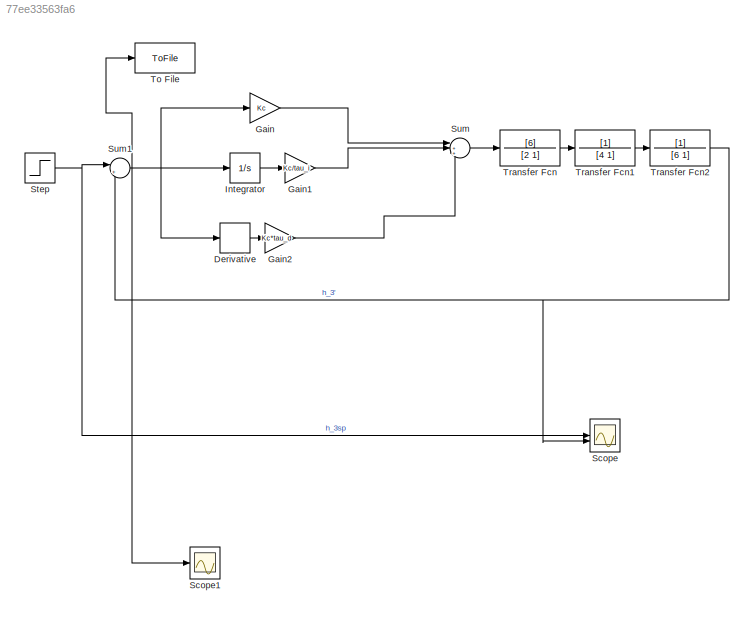
MODEL slx_77ee33563fa6
KIND model
CONFIG AbsTol = auto
CONFIG EnableMultiTasking = off
CONFIG FixedStep = auto
CONFIG MaxStep = auto
CONFIG MinStep = auto
CONFIG RelTol = 1e-3
CONFIG SampleTimeConstraint = Unconstrained
CONFIG SolverName = VariableStepAuto
CONFIG StartTime = 0.0
CONFIG StopTime = 50
BLOCK [Derivative] Derivative
BLOCK [Gain] Gain
  Gain = Kc
BLOCK [Gain] Gain1
  Gain = Kc/tau_i
BLOCK [Gain] Gain2
  Gain = Kc*tau_d
BLOCK [Integrator] Integrator
BLOCK [Scope] Scope
  Floating = off
  NumInputPorts = 2
  ScopeSpecificationString = Simulink.scopes.TimeScopeBlockCfg('CurrentConfiguration', extmgr.ConfigurationSet(extmgr.Configuration('Core','General UI',true),extmgr.Configuration('Core','Source UI',true),extmgr.Configuration('Sources','WiredSimulink',true),extmgr.Configuration('Visuals','Time Domain',true,'SerializedDisplays',{struct('MinYLimReal','-0.13119','MaxYLimReal','1.18073','YLabelReal','h_3'' and h_3sp','MinYLimMag',...<+1497ch>
BLOCK [Scope] Scope1
  Floating = off
  NumInputPorts = 1
  ScopeSpecificationString = Simulink.scopes.TimeScopeBlockCfg('CurrentConfiguration', extmgr.ConfigurationSet(extmgr.Configuration('Core','General UI',true),extmgr.Configuration('Core','Source UI',true),extmgr.Configuration('Sources','WiredSimulink',true,'DataLoggingVariableName','ScopeData1'),extmgr.Configuration('Visuals','Time Domain',true,'SerializedDisplays',{struct('MinYLimReal','-0.18073','MaxYLimReal','1.13119','YLab...<+1389ch>
BLOCK [Step] Step
  SampleTime = 0
  Time = 0
BLOCK [Sum] Sum
  Inputs = |+++
BLOCK [Sum] Sum1
  Inputs = |+-
BLOCK [ToFile] To File
  Filename = Lab_5_error_data.mat
  SampleTime = 0.1
BLOCK [TransferFcn] Transfer Fcn
  Denominator = [2 1]
  Numerator = [6]
BLOCK [TransferFcn] Transfer Fcn1
  Denominator = [4 1]
BLOCK [TransferFcn] Transfer Fcn2
  Denominator = [6 1]
LINE Derivative:1 -> Gain2:1
LINE Gain1:1 -> Sum:2
LINE Gain2:1 -> Sum:3
LINE Gain:1 -> Sum:1
LINE Integrator:1 -> Gain1:1
NET Step:1 -> Scope:1, Sum1:1
NET Sum1:1 -> Derivative:1, Gain:1, Integrator:1, Scope1:1, To File:1
LINE Sum:1 -> Transfer Fcn:1
LINE Transfer Fcn1:1 -> Transfer Fcn2:1
NET Transfer Fcn2:1 -> Scope:2, Sum1:2
LINE Transfer Fcn:1 -> Transfer Fcn1:1
note: NET lines group one-source signal fan-out (src -> all destinations, sorted); 1:1 wires keep LINE
